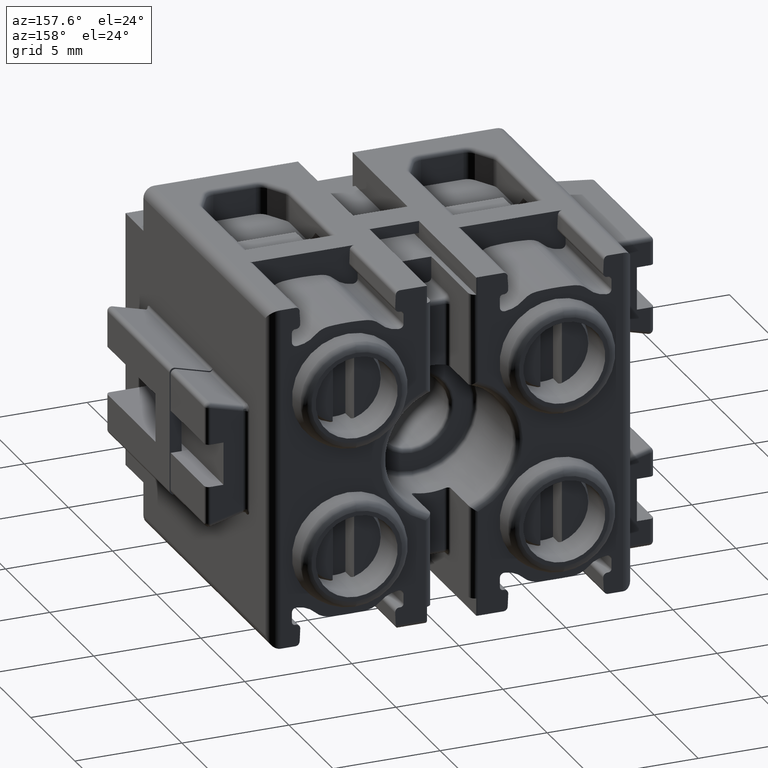
[diagram: clean part render]
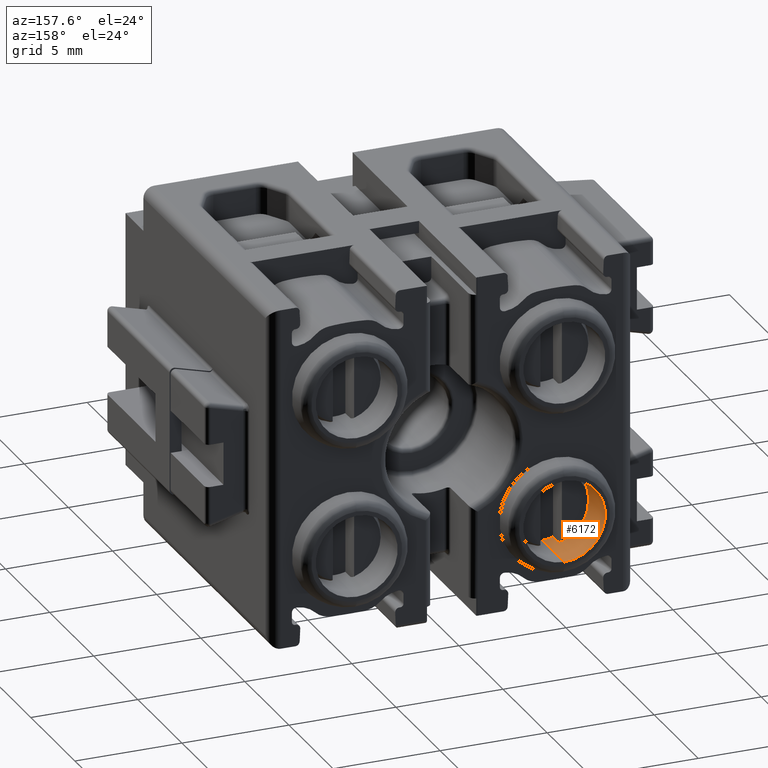
[diagram: same view with one face highlighted and labeled with its STEP entity id]
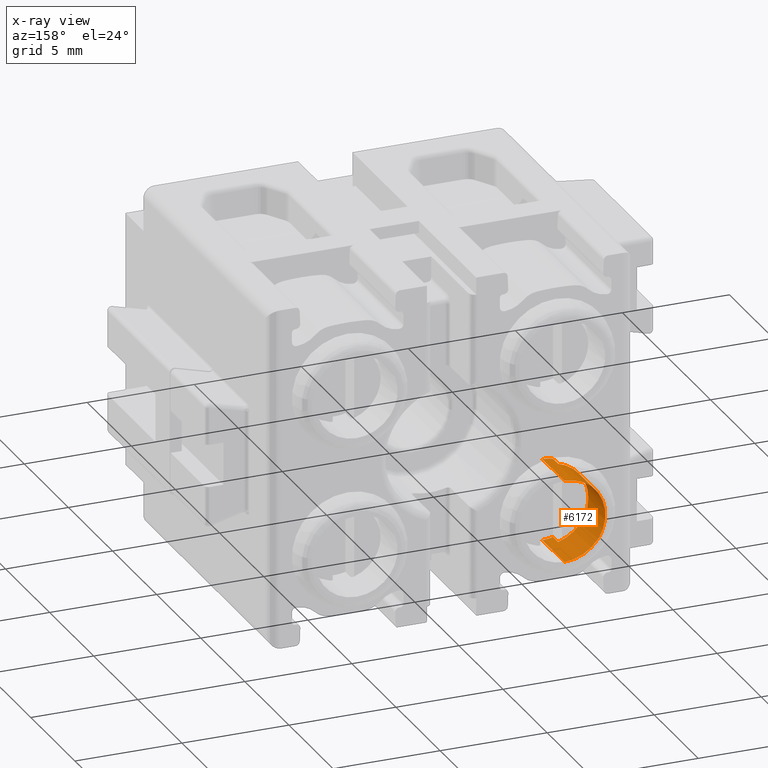
[diagram: x-ray of the same camera — body ghosted, the highlighted face saturated]
A machine part, auxiliary view. The second image highlights one B-rep face of the part: STEP entity #6172.
The next image is the same camera in x-ray: the body ghosted, the highlighted face saturated — about 0% of this face is hidden behind the body in this view.
In plain terms, the highlighted cylindrical surface (partial cylindrical patch) has radius 1.915 mm, axis along (0, 1, 0).
Its self-contained STEP definition (entity closure, byte-faithful):
#94 = AXIS2_PLACEMENT_3D ( 'NONE', #7455, #7429, #7432 ) ;
#1591 = VERTEX_POINT ( 'NONE', #16941 ) ;
#1600 = VERTEX_POINT ( 'NONE', #16960 ) ;
#1680 = VERTEX_POINT ( 'NONE', #17007 ) ;
#1682 = VERTEX_POINT ( 'NONE', #17009 ) ;
#1689 = VERTEX_POINT ( 'NONE', #17032 ) ;
#1695 = VERTEX_POINT ( 'NONE', #17033 ) ;
#1709 = VERTEX_POINT ( 'NONE', #17062 ) ;
#1710 = VERTEX_POINT ( 'NONE', #17044 ) ;
#1720 = VERTEX_POINT ( 'NONE', #17017 ) ;
#6172 = ADVANCED_FACE ( 'NONE', ( #7480 ), #7428, .F. ) ;
#7428 = CYLINDRICAL_SURFACE ( 'NONE', #94, 1.915000000000000000 ) ;
#7429 = DIRECTION ( 'NONE',  ( 0.0000000000000000000, 1.000000000000000000, 2.793185071074504800E-014 ) ) ;
#7432 = DIRECTION ( 'NONE',  ( 0.0000000000000000000, -2.898754633486048400E-014, 1.000000000000000000 ) ) ;
#7455 = CARTESIAN_POINT ( 'NONE',  ( 14.80655536988763800, 42.44889991280955900, -13.92283801961438200 ) ) ;
#7480 = FACE_OUTER_BOUND ( 'NONE', #12185, .T. ) ;
#9581 = EDGE_CURVE ( 'NONE', #1591, #1600, #11964, .T. ) ;
#9662 = EDGE_CURVE ( 'NONE', #1710, #1591, #12285, .T. ) ;
#9670 = EDGE_CURVE ( 'NONE', #1695, #1689, #12403, .T. ) ;
#9671 = EDGE_CURVE ( 'NONE', #1680, #1682, #12283, .T. ) ;
#9672 = EDGE_CURVE ( 'NONE', #1710, #1680, #13037, .T. ) ;
#9678 = EDGE_CURVE ( 'NONE', #1695, #1709, #13099, .T. ) ;
#9680 = EDGE_CURVE ( 'NONE', #1682, #1720, #13171, .T. ) ;
#9684 = EDGE_CURVE ( 'NONE', #1689, #1600, #13211, .T. ) ;
#9691 = EDGE_CURVE ( 'NONE', #1720, #1709, #12537, .T. ) ;
#9986 = ORIENTED_EDGE ( 'NONE', *, *, #9680, .T. ) ;
#9995 = ORIENTED_EDGE ( 'NONE', *, *, #9581, .F. ) ;
#10001 = ORIENTED_EDGE ( 'NONE', *, *, #9671, .T. ) ;
#10018 = ORIENTED_EDGE ( 'NONE', *, *, #9684, .T. ) ;
#10033 = ORIENTED_EDGE ( 'NONE', *, *, #9672, .T. ) ;
#10038 = ORIENTED_EDGE ( 'NONE', *, *, #9678, .F. ) ;
#10043 = ORIENTED_EDGE ( 'NONE', *, *, #9670, .T. ) ;
#10045 = ORIENTED_EDGE ( 'NONE', *, *, #9662, .F. ) ;
#10049 = ORIENTED_EDGE ( 'NONE', *, *, #9691, .T. ) ;
#11939 = AXIS2_PLACEMENT_3D ( 'NONE', #12270, #12188, #12191 ) ;
#11964 = CIRCLE ( 'NONE', #11939, 1.914999999999998300 ) ;
#12185 = EDGE_LOOP ( 'NONE', ( #10001, #9986, #10049, #10038, #10043, #10018, #9995, #10045, #10033 ) ) ;
#12188 = DIRECTION ( 'NONE',  ( -0.0000000000000000000, 1.000000000000000000, 2.706433866040225500E-014 ) ) ;
#12191 = DIRECTION ( 'NONE',  ( 3.623443291857563700E-015, 2.536410304300294600E-014, -1.000000000000000000 ) ) ;
#12266 = AXIS2_PLACEMENT_3D ( 'NONE', #13127, #13144, #13152 ) ;
#12270 = CARTESIAN_POINT ( 'NONE',  ( 14.80655536988763800, 42.42619384759864700, -13.92283801961434600 ) ) ;
#12283 = CIRCLE ( 'NONE', #12266, 1.915000000000000000 ) ;
#12285 = CIRCLE ( 'NONE', #12331, 1.914999999999998300 ) ;
#12316 = AXIS2_PLACEMENT_3D ( 'NONE', #13191, #13193, #13089 ) ;
#12331 = AXIS2_PLACEMENT_3D ( 'NONE', #12986, #13066, #12999 ) ;
#12354 = VECTOR ( 'NONE', #13149, 1000.000000000000000 ) ;
#12362 = VECTOR ( 'NONE', #13165, 1000.000000000000000 ) ;
#12393 = VECTOR ( 'NONE', #13084, 1000.000000000000000 ) ;
#12403 = CIRCLE ( 'NONE', #12316, 1.915000000000000000 ) ;
#12450 = AXIS2_PLACEMENT_3D ( 'NONE', #13260, #13283, #13200 ) ;
#12537 = CIRCLE ( 'NONE', #12450, 1.915000000000000000 ) ;
#12586 = VECTOR ( 'NONE', #13240, 1000.000000000000000 ) ;
#12986 = CARTESIAN_POINT ( 'NONE',  ( 14.80655536988763800, 42.42619384759864700, -13.92283801961434600 ) ) ;
#12999 = DIRECTION ( 'NONE',  ( 3.623443291857563700E-015, 2.536410304300294600E-014, -1.000000000000000000 ) ) ;
#13037 = LINE ( 'NONE', #13123, #12354 ) ;
#13066 = DIRECTION ( 'NONE',  ( -0.0000000000000000000, 1.000000000000000000, 2.706433866040225500E-014 ) ) ;
#13084 = DIRECTION ( 'NONE',  ( 0.0000000000000000000, 1.000000000000000000, 2.793185071074504800E-014 ) ) ;
#13089 = DIRECTION ( 'NONE',  ( 0.0000000000000000000, 0.0000000000000000000, -1.000000000000000000 ) ) ;
#13099 = LINE ( 'NONE', #13178, #12362 ) ;
#13123 = CARTESIAN_POINT ( 'NONE',  ( 14.30655536988782100, 30.49963753280814100, -15.77141179417716000 ) ) ;
#13127 = CARTESIAN_POINT ( 'NONE',  ( 14.80655536988763800, 41.84889991418359800, -13.92283801961436200 ) ) ;
#13144 = DIRECTION ( 'NONE',  ( 0.0000000000000000000, -1.000000000000000000, 0.0000000000000000000 ) ) ;
#13149 = DIRECTION ( 'NONE',  ( -0.0000000000000000000, -1.000000000000000000, -2.793185071074505100E-014 ) ) ;
#13152 = DIRECTION ( 'NONE',  ( 0.0000000000000000000, 0.0000000000000000000, -1.000000000000000000 ) ) ;
#13165 = DIRECTION ( 'NONE',  ( 0.0000000000000000000, 1.000000000000000000, 2.793185071074504800E-014 ) ) ;
#13171 = LINE ( 'NONE', #13183, #12393 ) ;
#13178 = CARTESIAN_POINT ( 'NONE',  ( 14.80655536988763800, 42.44889991280950200, -12.00783801961438100 ) ) ;
#13183 = CARTESIAN_POINT ( 'NONE',  ( 14.80655536988763800, 42.44889991280960800, -15.83783801961437900 ) ) ;
#13191 = CARTESIAN_POINT ( 'NONE',  ( 14.80655536988763800, 41.84889991418359800, -13.92283801961436200 ) ) ;
#13193 = DIRECTION ( 'NONE',  ( 0.0000000000000000000, -1.000000000000000000, 0.0000000000000000000 ) ) ;
#13200 = DIRECTION ( 'NONE',  ( 0.0000000000000000000, -2.898754633486048400E-014, 1.000000000000000000 ) ) ;
#13211 = LINE ( 'NONE', #13258, #12586 ) ;
#13240 = DIRECTION ( 'NONE',  ( 0.0000000000000000000, 1.000000000000000000, 2.793185071074505100E-014 ) ) ;
#13258 = CARTESIAN_POINT ( 'NONE',  ( 14.30655536988782100, 30.49963753280803800, -12.07426424505219800 ) ) ;
#13260 = CARTESIAN_POINT ( 'NONE',  ( 14.80655536988763800, 44.34889991280955700, -13.92283801961432100 ) ) ;
#13283 = DIRECTION ( 'NONE',  ( 0.0000000000000000000, 1.000000000000000000, 2.793185071074504800E-014 ) ) ;
#16941 = CARTESIAN_POINT ( 'NONE',  ( 12.89155536988772800, 42.42619384759864700, -13.92283801961582100 ) ) ;
#16960 = CARTESIAN_POINT ( 'NONE',  ( 14.30655536988782100, 42.42619384759376500, -12.07426424505186600 ) ) ;
#17007 = CARTESIAN_POINT ( 'NONE',  ( 14.30655536988782100, 41.84889991418359800, -15.77141179417684200 ) ) ;
#17009 = CARTESIAN_POINT ( 'NONE',  ( 14.80655536988763800, 41.84889991418359800, -15.83783801961436100 ) ) ;
#17017 = CARTESIAN_POINT ( 'NONE',  ( 14.80655536988763800, 44.34889991280960700, -15.83783801961432000 ) ) ;
#17032 = CARTESIAN_POINT ( 'NONE',  ( 14.30655536988782100, 41.84889991418359800, -12.07426424505188000 ) ) ;
#17033 = CARTESIAN_POINT ( 'NONE',  ( 14.80655536988763800, 41.84889991418359800, -12.00783801961436300 ) ) ;
#17044 = CARTESIAN_POINT ( 'NONE',  ( 14.30655536988782100, 42.42619384760320900, -15.77141179417682800 ) ) ;
#17062 = CARTESIAN_POINT ( 'NONE',  ( 14.80655536988763800, 44.34889991280950000, -12.00783801961432000 ) ) ;